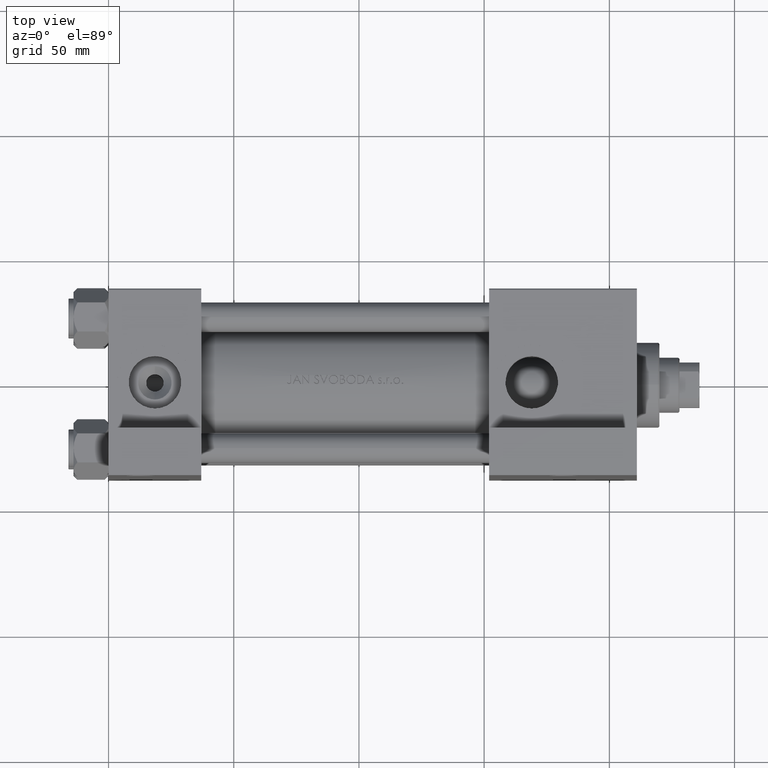
[diagram: clean part render]
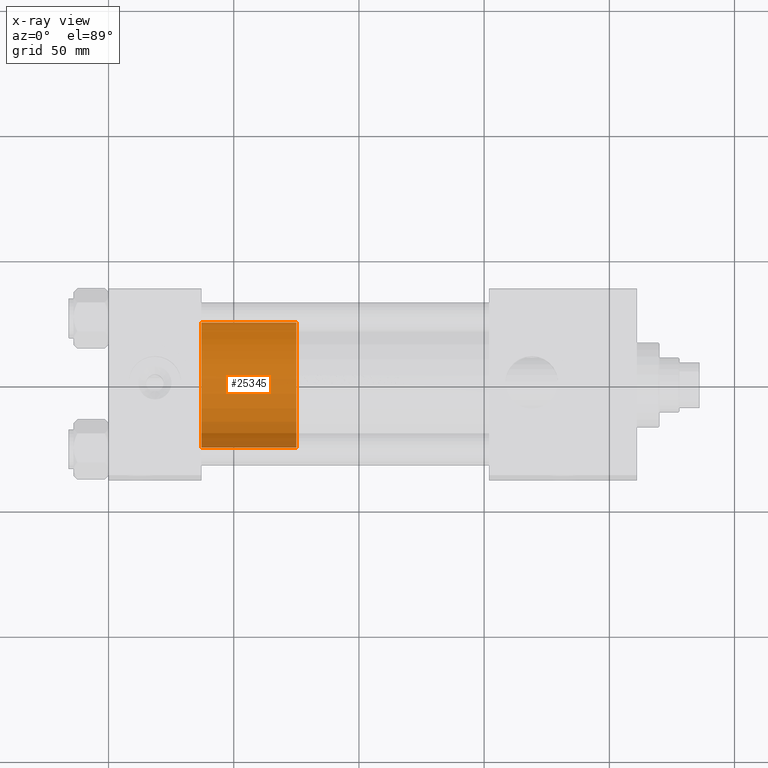
[diagram: x-ray — body ghosted, one internal face saturated and labeled with its STEP entity id]
A machine part, top view, then the same camera in x-ray: the body is ghosted and one INTERNAL B-rep face — a face not visible from any outside direction — is saturated and labeled: STEP entity #25345.
In plain terms, the highlighted cylindrical surface (partial cylindrical patch) has radius 25 mm, axis along (-1, 0, 0).
Its self-contained STEP definition (entity closure, byte-faithful):
#742 = CIRCLE ( 'NONE', #14253, 25.00000000000000000 ) ;
#1131 = DIRECTION ( 'NONE',  ( 0.000000000000000000, 0.000000000000000000, 1.000000000000000000 ) ) ;
#4788 = ORIENTED_EDGE ( 'NONE', *, *, #17570, .F. ) ;
#6525 = VECTOR ( 'NONE', #38481, 1000.000000000000000 ) ;
#8269 = LINE ( 'NONE', #32640, #47669 ) ;
#8959 = EDGE_LOOP ( 'NONE', ( #4788, #22715, #19473, #18091 ) ) ;
#9406 = CARTESIAN_POINT ( 'NONE',  ( 25.00000000000000000, 3.061616997868383043E-15, 38.00000000000000000 ) ) ;
#10198 = EDGE_CURVE ( 'NONE', #40939, #17478, #25247, .T. ) ;
#12034 = CARTESIAN_POINT ( 'NONE',  ( 0.000000000000000000, 0.000000000000000000, 0.000000000000000000 ) ) ;
#13261 = CARTESIAN_POINT ( 'NONE',  ( 25.00000000000000000, 3.061616997868383043E-15, 0.000000000000000000 ) ) ;
#14253 = AXIS2_PLACEMENT_3D ( 'NONE', #35261, #1131, #15863 ) ;
#15863 = DIRECTION ( 'NONE',  ( 1.000000000000000000, 0.000000000000000000, 0.000000000000000000 ) ) ;
#15974 = CARTESIAN_POINT ( 'NONE',  ( -25.00000000000000000, 0.000000000000000000, 38.00000000000000000 ) ) ;
#16077 = LINE ( 'NONE', #49178, #6525 ) ;
#17466 = DIRECTION ( 'NONE',  ( -0.000000000000000000, -0.000000000000000000, -1.000000000000000000 ) ) ;
#17478 = VERTEX_POINT ( 'NONE', #48701 ) ;
#17570 = EDGE_CURVE ( 'NONE', #27750, #34409, #742, .T. ) ;
#18091 = ORIENTED_EDGE ( 'NONE', *, *, #37773, .F. ) ;
#19473 = ORIENTED_EDGE ( 'NONE', *, *, #10198, .T. ) ;
#19541 = DIRECTION ( 'NONE',  ( 1.000000000000000000, 0.000000000000000000, 0.000000000000000000 ) ) ;
#22715 = ORIENTED_EDGE ( 'NONE', *, *, #26265, .T. ) ;
#25247 = CIRCLE ( 'NONE', #47428, 25.00000000000000000 ) ;
#25345 = ADVANCED_FACE ( 'NONE', ( #34091 ), #44791, .T. ) ;
#25641 = DIRECTION ( 'NONE',  ( -1.000000000000000000, 0.000000000000000000, 0.000000000000000000 ) ) ;
#26265 = EDGE_CURVE ( 'NONE', #27750, #40939, #8269, .T. ) ;
#27750 = VERTEX_POINT ( 'NONE', #9406 ) ;
#32640 = CARTESIAN_POINT ( 'NONE',  ( 25.00000000000000000, 3.061616997868383043E-15, 38.00000000000000000 ) ) ;
#34091 = FACE_OUTER_BOUND ( 'NONE', #8959, .T. ) ;
#34409 = VERTEX_POINT ( 'NONE', #15974 ) ;
#34930 = AXIS2_PLACEMENT_3D ( 'NONE', #48534, #37332, #25641 ) ;
#35261 = CARTESIAN_POINT ( 'NONE',  ( 0.000000000000000000, 0.000000000000000000, 38.00000000000000000 ) ) ;
#37332 = DIRECTION ( 'NONE',  ( -0.000000000000000000, -0.000000000000000000, -1.000000000000000000 ) ) ;
#37773 = EDGE_CURVE ( 'NONE', #34409, #17478, #16077, .T. ) ;
#38481 = DIRECTION ( 'NONE',  ( -0.000000000000000000, -0.000000000000000000, -1.000000000000000000 ) ) ;
#39189 = DIRECTION ( 'NONE',  ( 0.000000000000000000, 0.000000000000000000, 1.000000000000000000 ) ) ;
#40939 = VERTEX_POINT ( 'NONE', #13261 ) ;
#44791 = CYLINDRICAL_SURFACE ( 'NONE', #34930, 25.00000000000000000 ) ;
#47428 = AXIS2_PLACEMENT_3D ( 'NONE', #12034, #39189, #19541 ) ;
#47669 = VECTOR ( 'NONE', #17466, 1000.000000000000000 ) ;
#48534 = CARTESIAN_POINT ( 'NONE',  ( 0.000000000000000000, 0.000000000000000000, 38.00000000000000000 ) ) ;
#48701 = CARTESIAN_POINT ( 'NONE',  ( -25.00000000000000000, 0.000000000000000000, 0.000000000000000000 ) ) ;
#49178 = CARTESIAN_POINT ( 'NONE',  ( -25.00000000000000000, 0.000000000000000000, 38.00000000000000000 ) ) ;